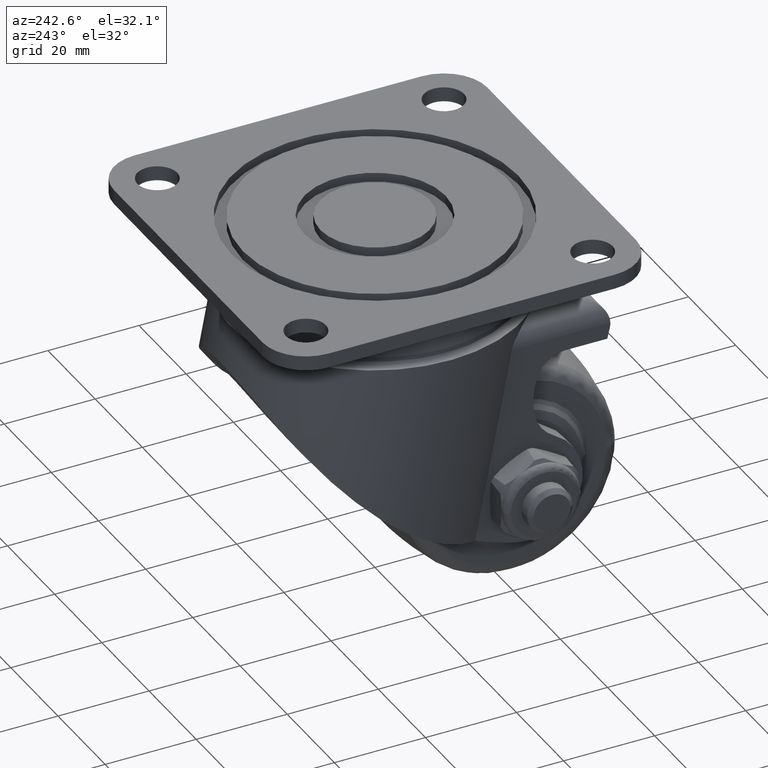
[diagram: clean part render]
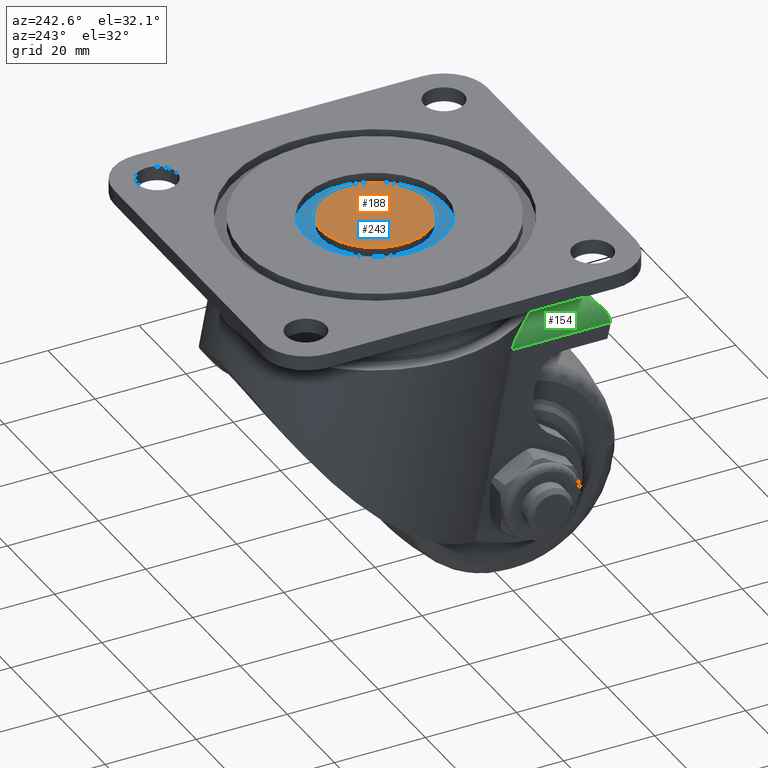
[diagram: same view with three faces highlighted in distinct colors, each labeled with its STEP entity id]
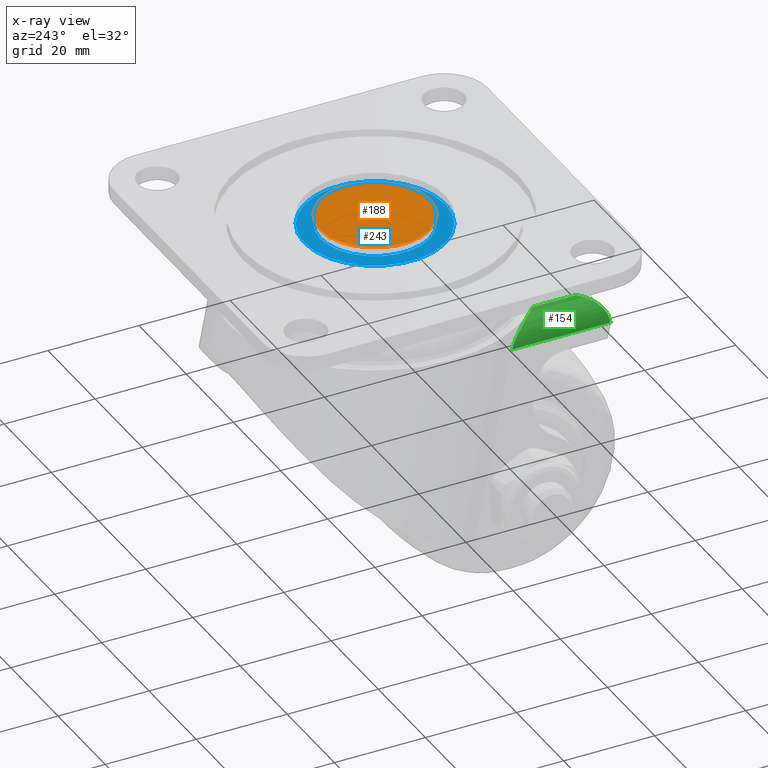
[diagram: x-ray of the same camera — body ghosted, the three highlighted faces saturated]
A machine part, auxiliary view with three faces highlighted in distinct colors.
The next image is the same camera in x-ray (body ghosted, the three faces saturated) — at least one of them is partly hidden behind the body in this view.
Their STEP definitions:

[orange] entity #188 — the highlighted planar face has unit normal (0, 0, 1).
#188=ADVANCED_FACE('',(#727),#726,.T.);
#726=PLANE('',#2397);
#727=FACE_OUTER_BOUND('',#2398,.T.);
#2394=CARTESIAN_POINT('',(-2.49415316290E+01,0.00000000000E+00,-1.56000000000E+01));
#2395=DIRECTION('',(0.00000000000E+00,1.00000000000E+00,0.00000000000E+00));
#2396=DIRECTION('',(0.00000000000E+00,0.00000000000E+00,1.00000000000E+00));
#2397=AXIS2_PLACEMENT_3D('',#2394,#2395,#2396);
#2398=EDGE_LOOP('',(#4098,#4099));
#4098=ORIENTED_EDGE('',*,*,#4866,.F.);
#4099=ORIENTED_EDGE('',*,*,#4867,.F.);
#4866=EDGE_CURVE('',#6089,#6090,#6091,.T.);
#4867=EDGE_CURVE('',#6090,#6089,#6097,.T.);
#6089=VERTEX_POINT('',#8827);
#6090=VERTEX_POINT('',#8828);
#6091=CIRCLE('',#8832,1.20000000000E+01);
#6097=CIRCLE('',#8836,1.20000000000E+01);
#8827=CARTESIAN_POINT('',(-5.92118946467E-16,0.00000000000E+00,1.20000000000E+01));
#8828=CARTESIAN_POINT('',(0.00000000000E+00,0.00000000000E+00,-1.20000000000E+01));
#8829=CARTESIAN_POINT('',(0.00000000000E+00,0.00000000000E+00,0.00000000000E+00));
#8830=DIRECTION('',(0.00000000000E+00,-1.00000000000E+00,-0.00000000000E+00));
#8831=DIRECTION('',(-1.22460635382E-16,0.00000000000E+00,-1.00000000000E+00));
#8832=AXIS2_PLACEMENT_3D('',#8829,#8830,#8831);
#8833=CARTESIAN_POINT('',(0.00000000000E+00,0.00000000000E+00,0.00000000000E+00));
#8834=DIRECTION('',(0.00000000000E+00,-1.00000000000E+00,-0.00000000000E+00));
#8835=DIRECTION('',(-1.22460635382E-16,0.00000000000E+00,-1.00000000000E+00));
#8836=AXIS2_PLACEMENT_3D('',#8833,#8834,#8835);

[blue] entity #243 — the highlighted planar face has unit normal (0, 0, 1).
#243=ADVANCED_FACE('',(#1289,#1290),#1288,.T.);
#1288=PLANE('',#2892);
#1289=FACE_OUTER_BOUND('',#2893,.T.);
#1290=FACE_BOUND('',#2894,.T.);
#2889=CARTESIAN_POINT('',(-3.22161450208E+01,-2.00000000000E+00,-2.01500000000E+01));
#2890=DIRECTION('',(0.00000000000E+00,1.00000000000E+00,0.00000000000E+00));
#2891=DIRECTION('',(0.00000000000E+00,0.00000000000E+00,1.00000000000E+00));
#2892=AXIS2_PLACEMENT_3D('',#2889,#2890,#2891);
#2893=EDGE_LOOP('',(#4373,#4374));
#2894=EDGE_LOOP('',(#4375,#4376));
#4373=ORIENTED_EDGE('',*,*,#4982,.F.);
#4374=ORIENTED_EDGE('',*,*,#4983,.F.);
#4375=ORIENTED_EDGE('',*,*,#4984,.F.);
#4376=ORIENTED_EDGE('',*,*,#4985,.F.);
#4982=EDGE_CURVE('',#6856,#6857,#6858,.T.);
#4983=EDGE_CURVE('',#6857,#6856,#6864,.T.);
#4984=EDGE_CURVE('',#6870,#6871,#6872,.T.);
#4985=EDGE_CURVE('',#6871,#6870,#6878,.T.);
#6856=VERTEX_POINT('',#9296);
#6857=VERTEX_POINT('',#9297);
#6858=CIRCLE('',#9301,1.55000000000E+01);
#6864=CIRCLE('',#9305,1.55000000000E+01);
#6870=VERTEX_POINT('',#9306);
#6871=VERTEX_POINT('',#9307);
#6872=CIRCLE('',#9311,1.20000000000E+01);
#6878=CIRCLE('',#9315,1.20000000000E+01);
#9296=CARTESIAN_POINT('',(1.77635683940E-15,-2.00000000000E+00,1.55000000000E+01));
#9297=CARTESIAN_POINT('',(0.00000000000E+00,-2.00000000000E+00,-1.55000000000E+01));
#9298=CARTESIAN_POINT('',(0.00000000000E+00,-2.00000000000E+00,0.00000000000E+00));
#9299=DIRECTION('',(0.00000000000E+00,-1.00000000000E+00,-0.00000000000E+00));
#9300=DIRECTION('',(-1.22460635382E-16,0.00000000000E+00,-1.00000000000E+00));
#9301=AXIS2_PLACEMENT_3D('',#9298,#9299,#9300);
#9302=CARTESIAN_POINT('',(0.00000000000E+00,-2.00000000000E+00,0.00000000000E+00));
#9303=DIRECTION('',(0.00000000000E+00,-1.00000000000E+00,-0.00000000000E+00));
#9304=DIRECTION('',(-1.22460635382E-16,0.00000000000E+00,-1.00000000000E+00));
#9305=AXIS2_PLACEMENT_3D('',#9302,#9303,#9304);
#9306=CARTESIAN_POINT('',(-5.92118946467E-16,-2.00000000000E+00,-1.20000000000E+01));
#9307=CARTESIAN_POINT('',(0.00000000000E+00,-2.00000000000E+00,1.20000000000E+01));
#9308=CARTESIAN_POINT('',(0.00000000000E+00,-2.00000000000E+00,0.00000000000E+00));
#9309=DIRECTION('',(0.00000000000E+00,1.00000000000E+00,0.00000000000E+00));
#9310=DIRECTION('',(-1.22460635382E-16,0.00000000000E+00,1.00000000000E+00));
#9311=AXIS2_PLACEMENT_3D('',#9308,#9309,#9310);
#9312=CARTESIAN_POINT('',(0.00000000000E+00,-2.00000000000E+00,0.00000000000E+00));
#9313=DIRECTION('',(0.00000000000E+00,1.00000000000E+00,0.00000000000E+00));
#9314=DIRECTION('',(-1.22460635382E-16,0.00000000000E+00,1.00000000000E+00));
#9315=AXIS2_PLACEMENT_3D('',#9312,#9313,#9314);

[green] entity #154 — the highlighted cylindrical surface (edge-blend (fillet) strip) has radius 5 mm, axis along (0, -1, 0).
#154=ADVANCED_FACE('',(#380),#379,.T.);
#379=CYLINDRICAL_SURFACE('',#2190,5.00000000000E+00);
#380=FACE_OUTER_BOUND('',#2191,.T.);
#2187=CARTESIAN_POINT('',(-2.15000000000E+01,-2.10000000000E+01,4.20000000000E+01));
#2188=DIRECTION('',(-0.00000000000E+00,-0.00000000000E+00,1.00000000000E+00));
#2189=DIRECTION('',(1.00000000000E+00,-0.00000000000E+00,-0.00000000000E+00));
#2190=AXIS2_PLACEMENT_3D('',#2187,#2188,#2189);
#2191=EDGE_LOOP('',(#3926,#3927,#3928,#3929));
#3926=ORIENTED_EDGE('',*,*,#4755,.F.);
#3927=ORIENTED_EDGE('',*,*,#4756,.T.);
#3928=ORIENTED_EDGE('',*,*,#4757,.T.);
#3929=ORIENTED_EDGE('',*,*,#4758,.T.);
#4755=EDGE_CURVE('',#5349,#5350,#5351,.T.);
#4756=EDGE_CURVE('',#5349,#5357,#5358,.T.);
#4757=EDGE_CURVE('',#5357,#5364,#5365,.T.);
#4758=EDGE_CURVE('',#5364,#5350,#5371,.T.);
#5349=VERTEX_POINT('',#8235);
#5350=VERTEX_POINT('',#8236);
#5351=LINE('',#8237,#8238);
#5357=VERTEX_POINT('',#8240);
#5358=(BOUNDED_CURVE() B_SPLINE_CURVE(2,(#8241,#8242,#8243),.UNSPECIFIED.,.F.,.F.) B_SPLINE_CURVE_WITH_KNOTS((3,3),(3.14159265359E+00,4.71238898038E+00),.UNSPECIFIED.) CURVE() GEOMETRIC_REPRESENTATION_ITEM() RATIONAL_B_SPLINE_CURVE((1.00000000000E+00,7.07106781187E-01,1.00000000000E+00)) REPRESENTATION_ITEM('') );
#5364=VERTEX_POINT('',#8244);
#5365=LINE('',#8245,#8246);
#5371=(BOUNDED_CURVE() B_SPLINE_CURVE(3,(#8248,#8249,#8250,#8251,#8252,#8253,#8254,#8255,#8256,#8257,#8258,#8259,#8260,#8261,#8262,#8263,#8264,#8265,#8266,#8267),.UNSPECIFIED.,.F.,.F.) B_SPLINE_CURVE_WITH_KNOTS((4,2,2,2,2,2,2,2,2,4),(0.00000000000E+00,2.65846317605E-03,3.98769476407E-03,5.31692635210E-03,6.64615794012E-03,7.97538952815E-03,8.64000532216E-03,9.30462111617E-03,9.96923691019E-03,1.06338527042E-02),.UNSPECIFIED.) CURVE() GEOMETRIC_REPRESENTATION_ITEM() RATIONAL_B_SPLINE_CURVE((1.00000000000E+00,1.00000000000E+00,1.00000000000E+00,1.00000000000E+00,1.00000000000E+00,1.00000000000E+00,1.00000000000E+00,1.00000000000E+00,1.00000000000E+00,1.00000000000E+00,1.00000000000E+00,1.00000000000E+00,1.00000000000E+00,1.00000000000E+00,1.00000000000E+00,1.00000000000E+00,1.00000000000E+00,1.00000000000E+00,1.00000000000E+00,1.00000000000E+00)) REPRESENTATION_ITEM('') );
#8235=CARTESIAN_POINT('',(-2.65000000000E+01,-2.10000000000E+01,3.80000000000E+01));
#8236=CARTESIAN_POINT('',(-2.65000000000E+01,-2.10000000000E+01,1.63761588389E+01));
#8237=CARTESIAN_POINT('',(-2.65000000000E+01,-2.10000000000E+01,3.80000000000E+01));
#8238=VECTOR('',#8239,2.16238411611E+01);
#8239=DIRECTION('',(0.00000000000E+00,0.00000000000E+00,-1.00000000000E+00));
#8240=CARTESIAN_POINT('',(-2.15000000000E+01,-1.60000000000E+01,3.30000000000E+01));
#8241=CARTESIAN_POINT('',(-2.65000000000E+01,-2.10000000000E+01,3.80000000000E+01));
#8242=CARTESIAN_POINT('',(-2.65000000000E+01,-1.60000000000E+01,3.80000000000E+01));
#8243=CARTESIAN_POINT('',(-2.15000000000E+01,-1.60000000000E+01,3.30000000000E+01));
#8244=CARTESIAN_POINT('',(-2.15000000000E+01,-1.60000000000E+01,2.34525597318E+01));
#8245=CARTESIAN_POINT('',(-2.15000000000E+01,-1.60000000000E+01,3.30000000000E+01));
#8246=VECTOR('',#8247,9.54744026823E+00);
#8247=DIRECTION('',(0.00000000000E+00,0.00000000000E+00,-1.00000000000E+00));
#8248=CARTESIAN_POINT('',(-2.15000000000E+01,-1.60000000000E+01,2.34525597318E+01));
#8249=CARTESIAN_POINT('',(-2.21515542309E+01,-1.60000000000E+01,2.28326841657E+01));
#8250=CARTESIAN_POINT('',(-2.27484084185E+01,-1.61219977903E+01,2.21889009789E+01));
#8251=CARTESIAN_POINT('',(-2.35801666047E+01,-1.64435469737E+01,2.11947988284E+01));
#8252=CARTESIAN_POINT('',(-2.38476545869E+01,-1.65756155942E+01,2.08570890796E+01));
#8253=CARTESIAN_POINT('',(-2.43506150715E+01,-1.68816686457E+01,2.01888841300E+01));
#8254=CARTESIAN_POINT('',(-2.45875264532E+01,-1.70559242961E+01,1.98568021368E+01));
#8255=CARTESIAN_POINT('',(-2.50335422019E+01,-1.74499813713E+01,1.91993749917E+01));
#8256=CARTESIAN_POINT('',(-2.52426961784E+01,-1.76695904781E+01,1.88739541783E+01));
#8257=CARTESIAN_POINT('',(-2.56313943519E+01,-1.81661010998E+01,1.82353253725E+01));
#8258=CARTESIAN_POINT('',(-2.58081074582E+01,-1.84392505290E+01,1.79267079960E+01));
#8259=CARTESIAN_POINT('',(-2.60397484177E+01,-1.88976224804E+01,1.74941559928E+01));
#8260=CARTESIAN_POINT('',(-2.61118002963E+01,-1.90598506547E+01,1.73541675833E+01));
#8261=CARTESIAN_POINT('',(-2.62402247771E+01,-1.93990157659E+01,1.70928117458E+01));
#8262=CARTESIAN_POINT('',(-2.62967998740E+01,-1.95760331572E+01,1.69711470941E+01));
#8263=CARTESIAN_POINT('',(-2.63919905179E+01,-1.99486202525E+01,1.67507903617E+01));
#8264=CARTESIAN_POINT('',(-2.64306632104E+01,-2.01441309879E+01,1.66520252894E+01));
#8265=CARTESIAN_POINT('',(-2.64850027085E+01,-2.05598869965E+01,1.64855346163E+01));
#8266=CARTESIAN_POINT('',(-2.65000000000E+01,-2.07771474608E+01,1.64194769844E+01));
#8267=CARTESIAN_POINT('',(-2.65000000000E+01,-2.10000000000E+01,1.63761588389E+01));